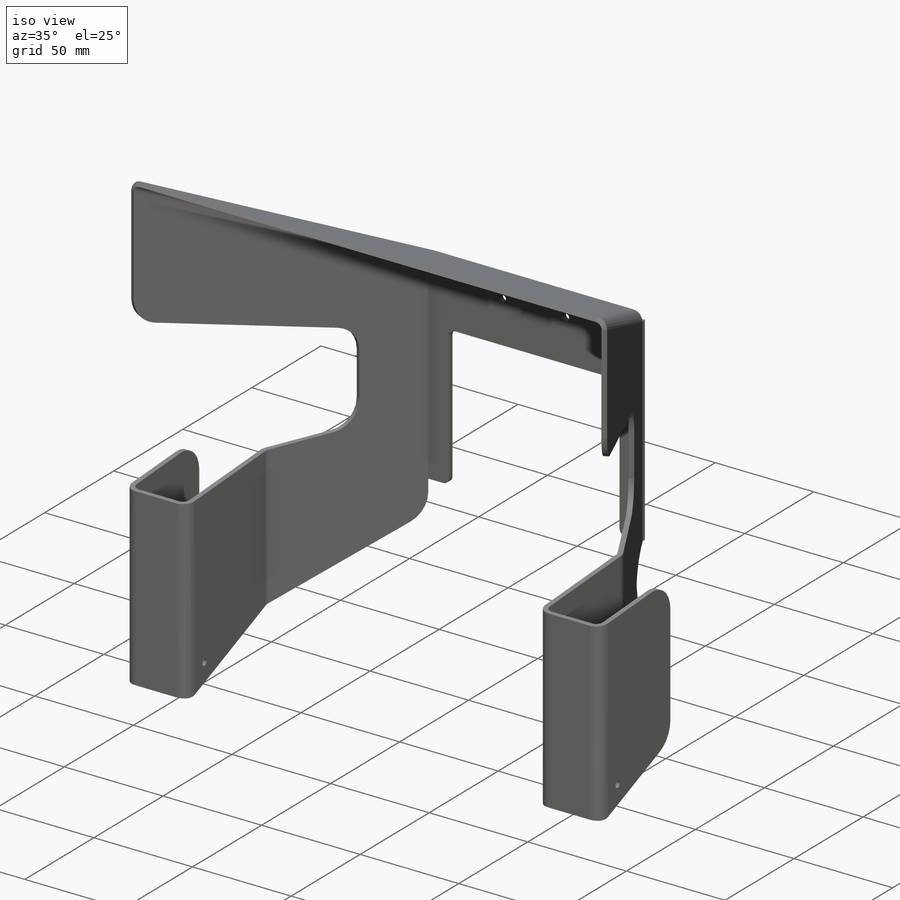
[diagram: iso view]
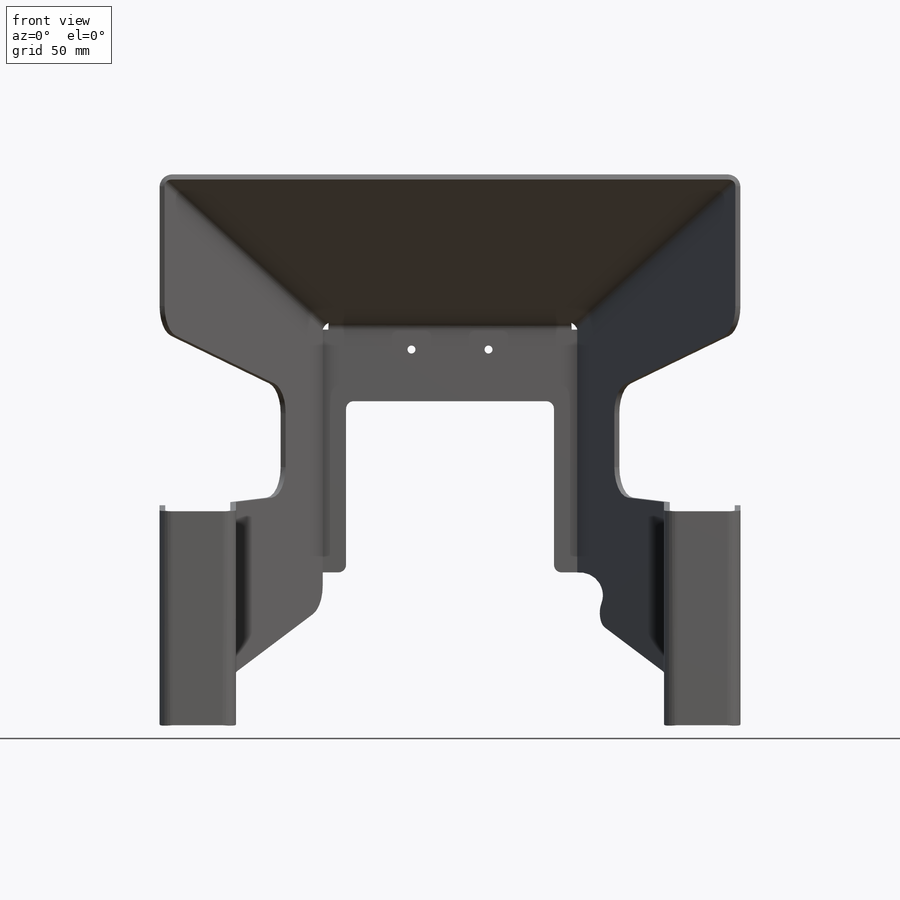
[diagram: front view]
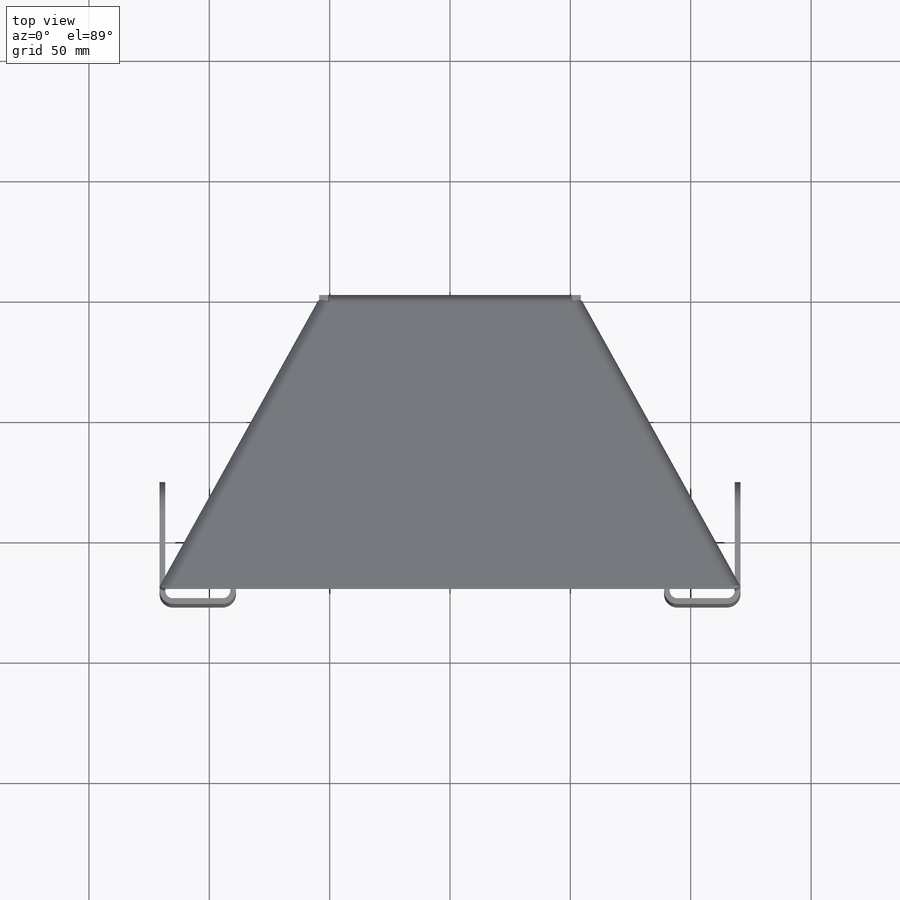
[diagram: top view]
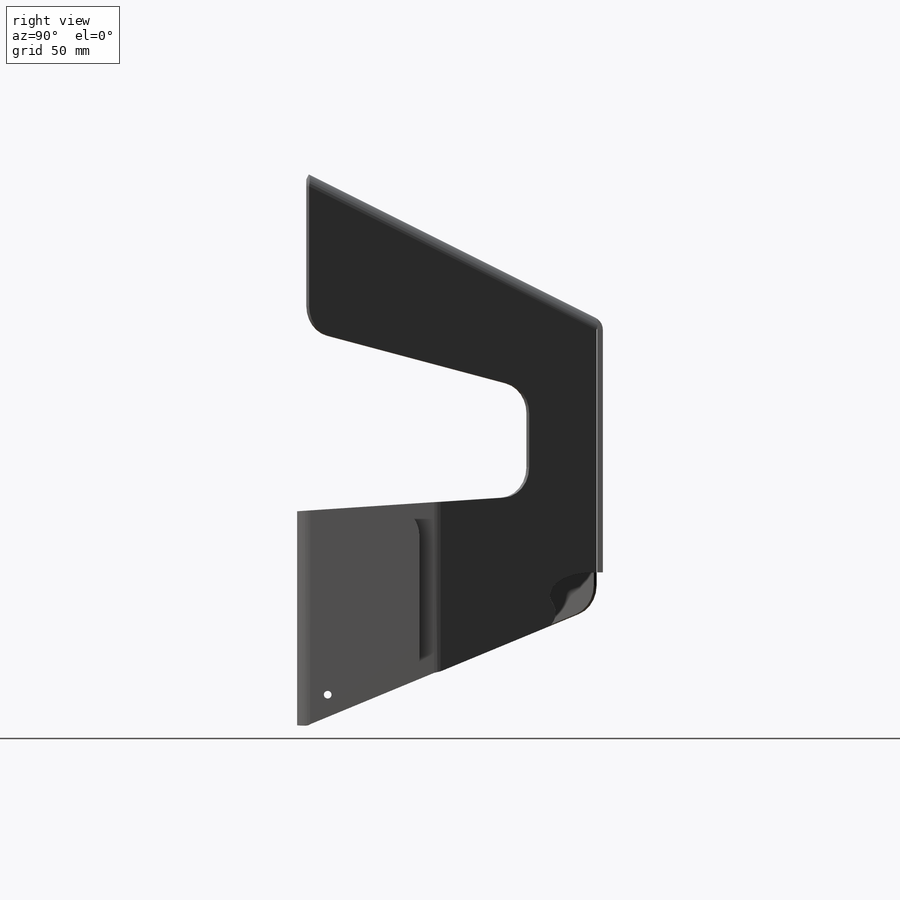
[diagram: right view]
SOLIDWORKS PART (.sldprt)
format: sldprt  version: not decoded by parser v0  size: 992,768 bytes
history: native  units: mm
features: sketch x38, cut_extrude x10, mirror x9, sheet_metal_op x9, extrude x6, fillet x3, material x1 + 9 further entries (+13 scaffold rows collapsed; 10 parser-record rows omitted)
feature tree (108):
  scaffold x13  (default folders/planes/origin — collapsed)
  material  "Material <not specified>"
  sketch  "Sketch7"  dims[D1=127.0mm D2=63.5mm]
  extrude  "Boss-Extrude1"  Depth=241.3mm
  sketch  "Sketch8"  dims[D1=101.6mm]
  extrude  "Boss-Extrude2"  Depth=228.6mm
  sketch  "Sketch17"  dims[c1.D1=88.9mm c1.D2=101.6mm c1.D3=76.2mm c1.D4=44.45mm c2.D1=88.9mm c2.D2=95.25mm c2.D5=25.4mm]
  cut_extrude  "Cut-Extrude1"  [1 undecoded]
  sketch  "Sketch19"  dims[D1=31.75mm]
  extrude  "Boss-Extrude4"  [1 undecoded]
  sketch  "Sketch20"  dims[c1.D1=50.8mm c1.D2=~119.747503mm c2.D2=~20.364811deg c3.D2=~1178.097245mm]
  cut_extrude  "Cut-Extrude2"  Depth=3.175mm
  sketch  "Sketch21"  dims[D1=50.8mm]
  cut_extrude  "Cut-Extrude3"  Depth=12.7mm
  mirror  "Mirror1"
  sketch  "Sketch26"  dims[D1=101.6mm]
  extrude  "Boss-Extrude5"  Depth=2.38125mm
  sketch  "Sketch33"
  cut_extrude  "Cut-Extrude6"  Depth=3.81mm
  mirror  "SharpBend14"
  mirror  "SharpBend15"
  mirror  "SharpBend16"
  mirror  "SharpBend17"
  mirror  "SharpBend18"
  mirror  "SharpBend19"
  mirror  "SharpBend20"
  mirror  "SharpBend21"
  sketch  "Sketch31"  dims[D3=3.302mm D1=92.583mm D2=32.004mm]
  cut_extrude  "Cut-Extrude4"  [1 undecoded]
  sketch  "Sketch37"
  cut_extrude  "Cut-Extrude7"  [1 undecoded]
  sketch  "Sketch39"
  cut_extrude  "Cut-Extrude8"  [1 undecoded]
  sketch  "Sketch40"
  extrude  "Boss-Extrude8"  Depth=3.81mm
  sketch  "Sketch41"
  extrude  "Boss-Extrude9"  Depth=3.81mm
  fillet  "Fillet5"  Radius=12.7mm
  sketch  "Sketch42"  dims[D1=86.36mm D2=30.48mm]
  cut_extrude  "Cut-Extrude9"  [1 undecoded]
  fillet  "Fillet6"  Radius=3.175mm
  sketch  "Sketch43"  dims[D1=3.175mm D2=12.7mm D3=12.7mm D4=50.8mm]
  cut_extrude  "Cut-Extrude10"  [1 undecoded]
  sketch  "Sketch44"  dims[D1=19.05mm]
  cut_extrude  "Cut-Extrude11"  [1 undecoded]
  fillet  "Fillet7"  Radius=6.35mm
  parser-record x10  (decoder bookkeeping rows leaked as tree rows — omitted from the tree; the rows remain in map.json)
  sketch  "Sketch31-1"  dims[D3=3.302mm D1=92.583mm D2=32.004mm]
  sketch  "Sketch43-1"  dims[D1=3.175mm D2=~14.001258mm D3=12.7mm D4=50.8mm]
  sketch  "Bend-Lines7"
  sketch  "Bounding-Box7"
  sheet_metal_op  "Sheet-Metal14"
  "Flat-Pattern14"
  sketch  "Bend-Lines10"
  sketch  "Bounding-Box10"
  sheet_metal_op  "Sheet-Metal15"
  "Flat-Pattern14"
  sketch  "Bend-Lines10"
  sketch  "Bounding-Box10"
  sheet_metal_op  "Sheet-Metal20"
  "Flat-Pattern14"
  sketch  "Bend-Lines10"
  sketch  "Bounding-Box10"
  sheet_metal_op  "Sheet-Metal21"
  "Flat-Pattern14"
  sketch  "Bend-Lines10"
  sketch  "Bounding-Box10"
  sheet_metal_op  "Sheet-Metal22"
  "Flat-Pattern14"
  sketch  "Bend-Lines10"
  sketch  "Bounding-Box10"
  sheet_metal_op  "Sheet-Metal23"
  "Flat-Pattern14"
  sketch  "Bend-Lines10"
  sketch  "Bounding-Box10"
  sheet_metal_op  "Sheet-Metal24"
  "Flat-Pattern14"
  sketch  "Bend-Lines10"
  sketch  "Bounding-Box10"
  sheet_metal_op  "Sheet-Metal25"
  "Flat-Pattern14"
  sketch  "Bend-Lines10"
  sketch  "Bounding-Box10"
  sheet_metal_op  "Sheet-Metal26"
  "Flat-Pattern14"
  sketch  "Bend-Lines10"
  sketch  "Bounding-Box10"
decode coverage: 24 of 75 modeling features carry decoded parameters; 9 rows unclassified (native names shown)
note: ~ marks probable driven/reference dimensions
note: 8 parameter values undecoded
summary: no parameter record found for 8 features
note: suppression state not decoded; provenance and decode notes live in map.json
